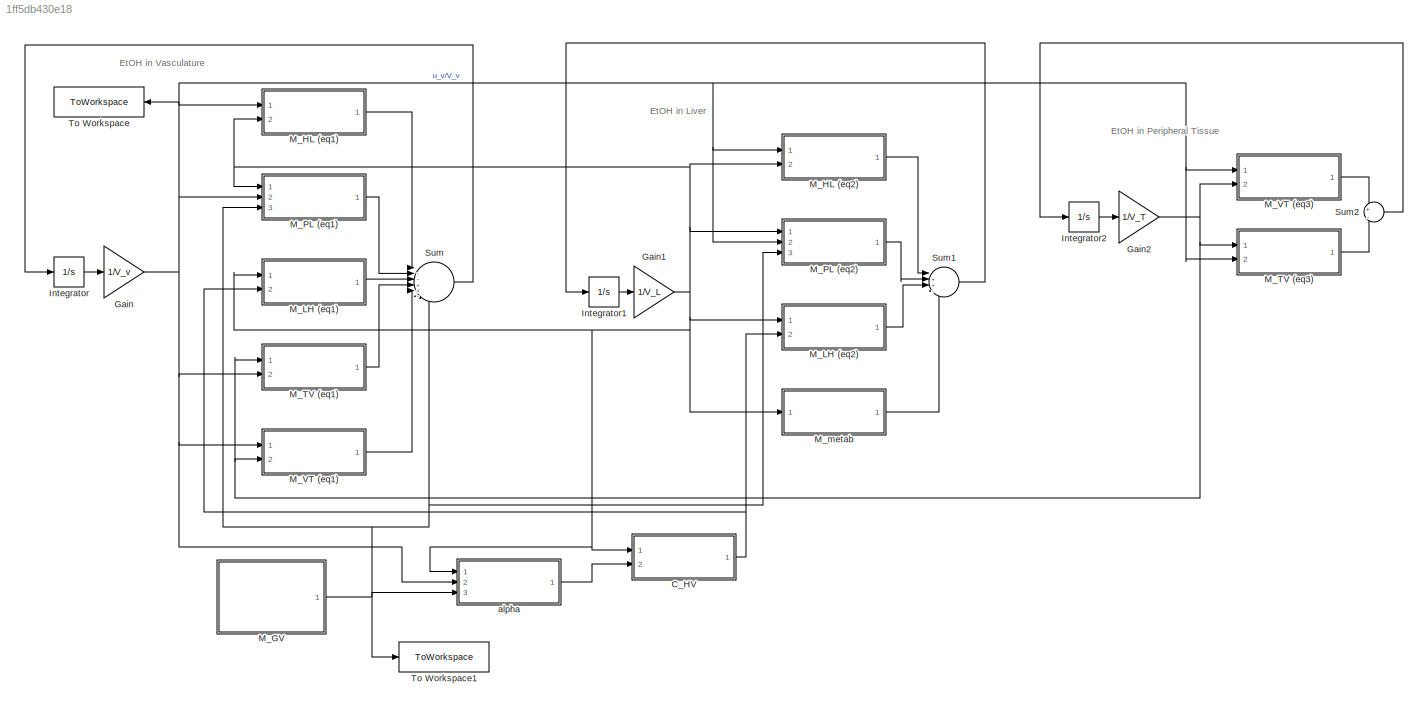
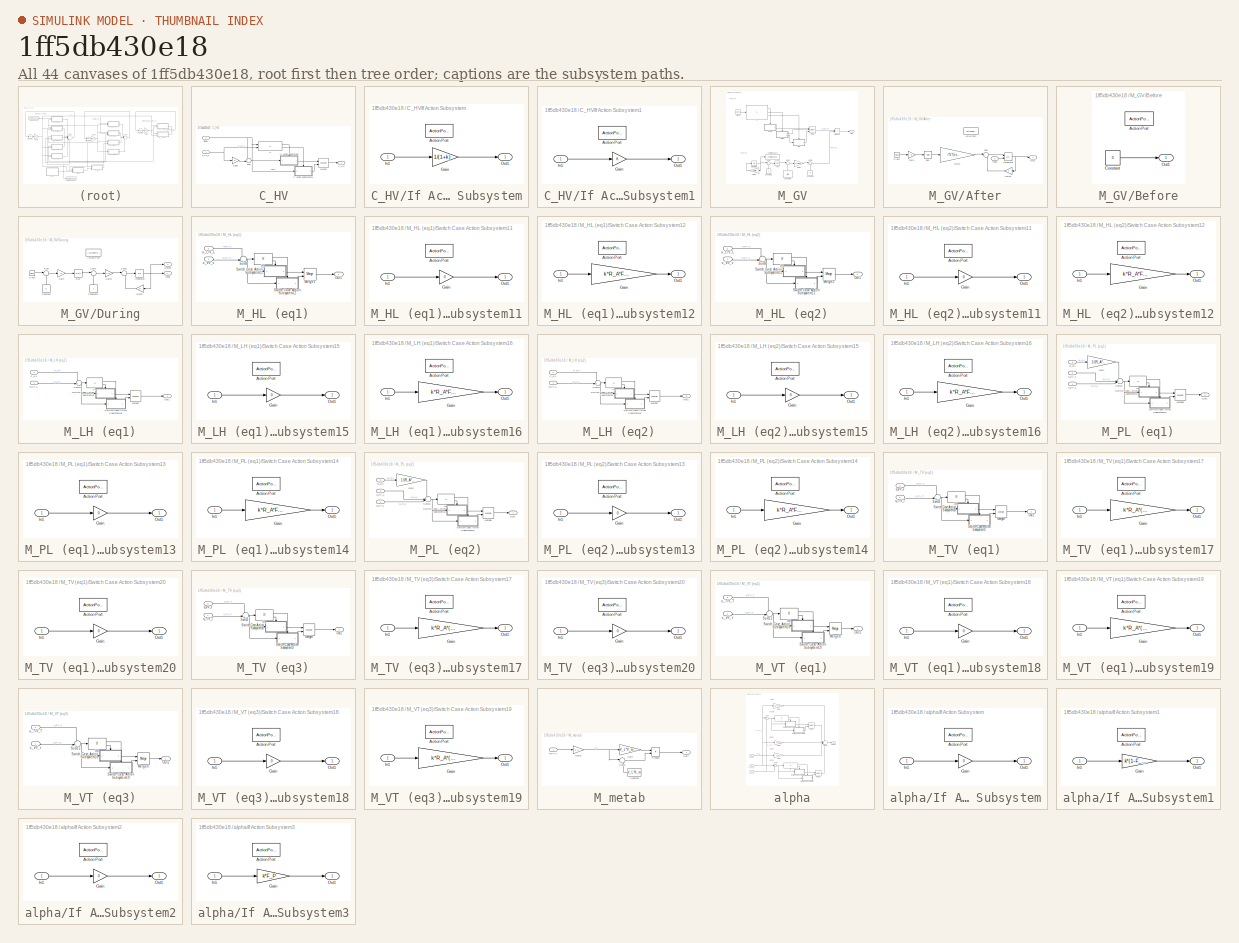
[diagram: thumbnail index - all 44 canvases of the model, root first then tree order]
MODEL slx_1ff5db430e18
KIND model
CONFIG AbsTol = auto
CONFIG EnableMultiTasking = off
CONFIG FixedStep = 10
CONFIG MaxStep = auto
CONFIG MinStep = auto
CONFIG RelTol = 1e-3
CONFIG SampleTimeConstraint = Unconstrained
CONFIG SolverName = FixedStepAuto
CONFIG StartTime = 0.0
CONFIG StopTime = 10000
BLOCK [SubSystem] C_HV
  Ports = [2, 1]
  RequestExecContextInheritance = off
BLOCK [Outport] C_HV/C_HV
BLOCK [Gain] C_HV/Gain1
  Gain = k
BLOCK [If] C_HV/If
  ElseIfExpressions = u1 >= u2
  IfExpression = u1 < u2
  NumInputs = 2
  Ports = [2, 2]
  ShowElse = off
BLOCK [SubSystem] C_HV/If Action Subsystem
  Ports = [1, 1, 0, 0, 0, 0, 0, 1]
  RequestExecContextInheritance = off
  TreatAsAtomicUnit = on
BLOCK [ActionPort] C_HV/If Action Subsystem/Action Port
  ActionPortLabel = if(u1 < u2)
BLOCK [Gain] C_HV/If Action Subsystem/Gain
  Gain = 1/(1+k)
BLOCK [Inport] C_HV/If Action Subsystem/In1
BLOCK [Outport] C_HV/If Action Subsystem/Out1
BLOCK [SubSystem] C_HV/If Action Subsystem1
  Ports = [1, 1, 0, 0, 0, 0, 0, 1]
  RequestExecContextInheritance = off
  TreatAsAtomicUnit = on
BLOCK [ActionPort] C_HV/If Action Subsystem1/Action Port
  ActionPortLabel = elseif(u1 >= u2)
BLOCK [Gain] C_HV/If Action Subsystem1/Gain
BLOCK [Inport] C_HV/If Action Subsystem1/In1
BLOCK [Outport] C_HV/If Action Subsystem1/Out1
BLOCK [Merge] C_HV/Merge
  Ports = [2, 1]
BLOCK [Sum] C_HV/Sum
  Inputs = ++|
  Ports = [2, 1]
BLOCK [Inport] C_HV/alpha
  Port = 2
BLOCK [Inport] C_HV/u_L//V_L
BLOCK [Gain] Gain
  Gain = 1/V_v
BLOCK [Gain] Gain1
  Gain = 1/V_L
BLOCK [Gain] Gain2
  Gain = 1/V_T
BLOCK [Integrator] Integrator
  Ports = [1, 1]
BLOCK [Integrator] Integrator1
  Ports = [1, 1]
BLOCK [Integrator] Integrator2
  Ports = [1, 1]
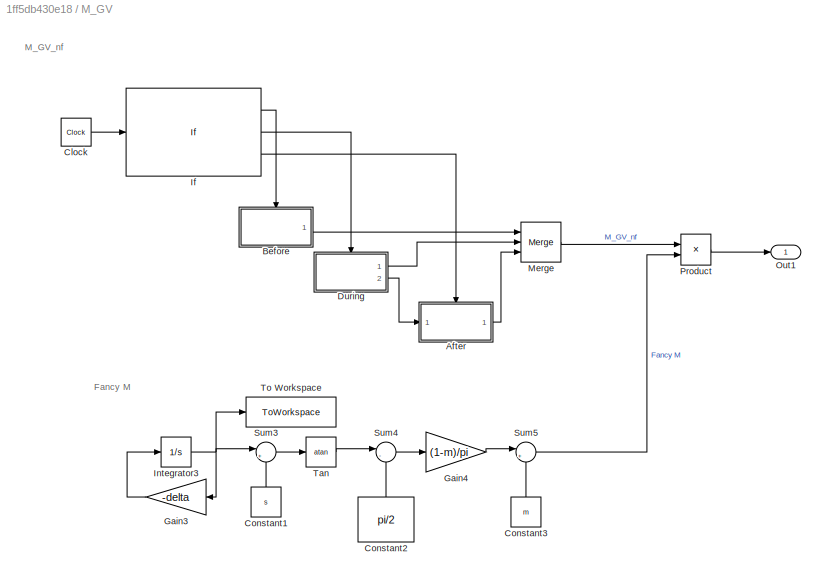
BLOCK [SubSystem] M_GV
  Ports = [0, 1]
  RequestExecContextInheritance = off
BLOCK [SubSystem] M_GV/After
  Ports = [1, 1, 0, 0, 0, 0, 0, 1]
  RequestExecContextInheritance = off
  TreatAsAtomicUnit = on
BLOCK [ActionPort] M_GV/After/Action Port
  ActionPortLabel = else
BLOCK [Clock] M_GV/After/Clock
BLOCK [Math] M_GV/After/Exp
  Ports = [1, 1]
BLOCK [Gain] M_GV/After/Gain
  Gain = -b
BLOCK [Gain] M_GV/After/Gain1
  Gain = r*b*(exp(b*E)-exp(b*S))
BLOCK [Gain] M_GV/After/Gain2
  Gain = b
  NameLocation = top
BLOCK [Inport] M_GV/After/Input
BLOCK [Integrator] M_GV/After/Integrator
  InitialConditionSource = external
  Ports = [2, 1]
BLOCK [Outport] M_GV/After/Out1
BLOCK [Sum] M_GV/After/Sum
  Inputs = |+-
  Ports = [2, 1]
BLOCK [SubSystem] M_GV/Before
  Ports = [0, 1, 0, 0, 0, 0, 0, 1]
  RequestExecContextInheritance = off
  TreatAsAtomicUnit = on
BLOCK [ActionPort] M_GV/Before/Action Port
  ActionPortLabel = if(u1 < 0)
BLOCK [Constant] M_GV/Before/Constant
  Value = 0
BLOCK [Outport] M_GV/Before/Out1
BLOCK [Clock] M_GV/Clock
BLOCK [Constant] M_GV/Constant1
  NameLocation = right
  Value = s
BLOCK [Constant] M_GV/Constant2
  NameLocation = right
  Value = pi/2
BLOCK [Constant] M_GV/Constant3
  NameLocation = right
  Value = m
BLOCK [SubSystem] M_GV/During
  Ports = [0, 2, 0, 0, 0, 0, 0, 1]
  RequestExecContextInheritance = off
  TreatAsAtomicUnit = on
BLOCK [ActionPort] M_GV/During/Action Port
  ActionPortLabel = elseif(S <= u1 & u1 <= E)
BLOCK [Clock] M_GV/During/Clock
BLOCK [Constant] M_GV/During/Constant
  NameLocation = right
  Value = S
BLOCK [Constant] M_GV/During/Constant1
  NameLocation = right
BLOCK [Math] M_GV/During/Exp
  Ports = [1, 1]
BLOCK [Gain] M_GV/During/Gain
  Gain = -b
BLOCK [Gain] M_GV/During/Gain1
  Gain = r*b
BLOCK [Gain] M_GV/During/Gain2
  Gain = b
  NameLocation = top
BLOCK [Outport] M_GV/During/Input
BLOCK [Integrator] M_GV/During/Integrator
  Ports = [1, 1]
BLOCK [Outport] M_GV/During/Output
  Port = 2
BLOCK [Sum] M_GV/During/Sum
  Inputs = |+-
  Ports = [2, 1]
BLOCK [Sum] M_GV/During/Sum1
  Inputs = |-+
  Ports = [2, 1]
BLOCK [Sum] M_GV/During/Sum2
  Inputs = |+-
  Ports = [2, 1]
BLOCK [Gain] M_GV/Gain3
  Gain = -delta
  NameLocation = top
BLOCK [Gain] M_GV/Gain4
  Gain = (1-m)/pi
BLOCK [If] M_GV/If
  ElseIfExpressions = S <= u1 & u1 <= E
  IfExpression = u1 < 0
  Ports = [1, 3]
BLOCK [Integrator] M_GV/Integrator3
  Ports = [1, 1]
BLOCK [Merge] M_GV/Merge
  Inputs = 3
  Ports = [3, 1]
BLOCK [Outport] M_GV/Out1
BLOCK [Product] M_GV/Product
  Ports = [2, 1]
BLOCK [Sum] M_GV/Sum3
  Inputs = |+-
  Ports = [2, 1]
BLOCK [Sum] M_GV/Sum4
  Inputs = |-+
  Ports = [2, 1]
BLOCK [Sum] M_GV/Sum5
  Inputs = |++
  Ports = [2, 1]
BLOCK [Trigonometry] M_GV/Tan
  Operator = atan
  Ports = [1, 1]
BLOCK [ToWorkspace] M_GV/To Workspace
  FixptAsFi = on
  MaxDataPoints = inf
  Ports = [1]
  SampleTime = -1
  SaveFormat = Timeseries
  VariableName = food
BLOCK [SubSystem] M_HL (eq1)
  Ports = [2, 1]
  RequestExecContextInheritance = off
BLOCK [If] M_HL (eq1)/If5
  Ports = [1, 2]
BLOCK [Merge] M_HL (eq1)/Merge5
  Ports = [2, 1]
BLOCK [Outport] M_HL (eq1)/Out1
BLOCK [Sum] M_HL (eq1)/Sum9
  Inputs = -+|
  Ports = [2, 1]
BLOCK [SubSystem] M_HL (eq1)/Switch Case Action Subsystem11
  Ports = [1, 1, 0, 0, 0, 0, 0, 1]
  RequestExecContextInheritance = off
  TreatAsAtomicUnit = on
BLOCK [ActionPort] M_HL (eq1)/Switch Case Action Subsystem11/Action Port
  ActionPortLabel = else
BLOCK [Gain] M_HL (eq1)/Switch Case Action Subsystem11/Gain
  Gain = 0
BLOCK [Inport] M_HL (eq1)/Switch Case Action Subsystem11/In1
BLOCK [Outport] M_HL (eq1)/Switch Case Action Subsystem11/Out1
BLOCK [SubSystem] M_HL (eq1)/Switch Case Action Subsystem12
  Ports = [1, 1, 0, 0, 0, 0, 0, 1]
  RequestExecContextInheritance = off
  TreatAsAtomicUnit = on
BLOCK [ActionPort] M_HL (eq1)/Switch Case Action Subsystem12/Action Port
  ActionPortLabel = if(u1 > 0)
BLOCK [Gain] M_HL (eq1)/Switch Case Action Subsystem12/Gain
  Gain = k*R_A*F_L*(1-F_P)
BLOCK [Inport] M_HL (eq1)/Switch Case Action Subsystem12/In1
BLOCK [Outport] M_HL (eq1)/Switch Case Action Subsystem12/Out1
BLOCK [Inport] M_HL (eq1)/u_L//V_L
  Port = 2
BLOCK [Inport] M_HL (eq1)/u_v//V_v
BLOCK [SubSystem] M_HL (eq2)
  Ports = [2, 1]
  RequestExecContextInheritance = off
BLOCK [If] M_HL (eq2)/If5
  Ports = [1, 2]
BLOCK [Merge] M_HL (eq2)/Merge5
  Ports = [2, 1]
BLOCK [Outport] M_HL (eq2)/Out1
BLOCK [Sum] M_HL (eq2)/Sum9
  Inputs = -+|
  Ports = [2, 1]
BLOCK [SubSystem] M_HL (eq2)/Switch Case Action Subsystem11
  Ports = [1, 1, 0, 0, 0, 0, 0, 1]
  RequestExecContextInheritance = off
  TreatAsAtomicUnit = on
BLOCK [ActionPort] M_HL (eq2)/Switch Case Action Subsystem11/Action Port
  ActionPortLabel = else
BLOCK [Gain] M_HL (eq2)/Switch Case Action Subsystem11/Gain
  Gain = 0
BLOCK [Inport] M_HL (eq2)/Switch Case Action Subsystem11/In1
BLOCK [Outport] M_HL (eq2)/Switch Case Action Subsystem11/Out1
BLOCK [SubSystem] M_HL (eq2)/Switch Case Action Subsystem12
  Ports = [1, 1, 0, 0, 0, 0, 0, 1]
  RequestExecContextInheritance = off
  TreatAsAtomicUnit = on
BLOCK [ActionPort] M_HL (eq2)/Switch Case Action Subsystem12/Action Port
  ActionPortLabel = if(u1 > 0)
BLOCK [Gain] M_HL (eq2)/Switch Case Action Subsystem12/Gain
  Gain = k*R_A*F_L*(1-F_P)
BLOCK [Inport] M_HL (eq2)/Switch Case Action Subsystem12/In1
BLOCK [Outport] M_HL (eq2)/Switch Case Action Subsystem12/Out1
BLOCK [Inport] M_HL (eq2)/u_L//V_L
  Port = 2
BLOCK [Inport] M_HL (eq2)/u_v//V_v
BLOCK [SubSystem] M_LH (eq1)
  Ports = [2, 1]
  RequestExecContextInheritance = off
BLOCK [Inport] M_LH (eq1)/C_HV
  Port = 2
BLOCK [If] M_LH (eq1)/If7
  Ports = [1, 2]
BLOCK [Merge] M_LH (eq1)/Merge7
  Ports = [2, 1]
BLOCK [Outport] M_LH (eq1)/Out1
BLOCK [Sum] M_LH (eq1)/Sum11
  Inputs = -+|
  Ports = [2, 1]
BLOCK [SubSystem] M_LH (eq1)/Switch Case Action Subsystem15
  Ports = [1, 1, 0, 0, 0, 0, 0, 1]
  RequestExecContextInheritance = off
  TreatAsAtomicUnit = on
BLOCK [ActionPort] M_LH (eq1)/Switch Case Action Subsystem15/Action Port
  ActionPortLabel = else
BLOCK [Gain] M_LH (eq1)/Switch Case Action Subsystem15/Gain
  Gain = 0
BLOCK [Inport] M_LH (eq1)/Switch Case Action Subsystem15/In1
BLOCK [Outport] M_LH (eq1)/Switch Case Action Subsystem15/Out1
BLOCK [SubSystem] M_LH (eq1)/Switch Case Action Subsystem16
  Ports = [1, 1, 0, 0, 0, 0, 0, 1]
  RequestExecContextInheritance = off
  TreatAsAtomicUnit = on
BLOCK [ActionPort] M_LH (eq1)/Switch Case Action Subsystem16/Action Port
  ActionPortLabel = if(u1 > 0)
BLOCK [Gain] M_LH (eq1)/Switch Case Action Subsystem16/Gain
  Gain = k*R_A*F_L
BLOCK [Inport] M_LH (eq1)/Switch Case Action Subsystem16/In1
BLOCK [Outport] M_LH (eq1)/Switch Case Action Subsystem16/Out1
BLOCK [Inport] M_LH (eq1)/u_L//V_L
BLOCK [SubSystem] M_LH (eq2)
  Ports = [2, 1]
  RequestExecContextInheritance = off
BLOCK [Inport] M_LH (eq2)/C_HV
  Port = 2
BLOCK [If] M_LH (eq2)/If7
  Ports = [1, 2]
BLOCK [Merge] M_LH (eq2)/Merge7
  Ports = [2, 1]
BLOCK [Outport] M_LH (eq2)/Out1
BLOCK [Sum] M_LH (eq2)/Sum11
  Inputs = -+|
  Ports = [2, 1]
BLOCK [SubSystem] M_LH (eq2)/Switch Case Action Subsystem15
  Ports = [1, 1, 0, 0, 0, 0, 0, 1]
  RequestExecContextInheritance = off
  TreatAsAtomicUnit = on
BLOCK [ActionPort] M_LH (eq2)/Switch Case Action Subsystem15/Action Port
  ActionPortLabel = else
BLOCK [Gain] M_LH (eq2)/Switch Case Action Subsystem15/Gain
  Gain = 0
BLOCK [Inport] M_LH (eq2)/Switch Case Action Subsystem15/In1
BLOCK [Outport] M_LH (eq2)/Switch Case Action Subsystem15/Out1
BLOCK [SubSystem] M_LH (eq2)/Switch Case Action Subsystem16
  Ports = [1, 1, 0, 0, 0, 0, 0, 1]
  RequestExecContextInheritance = off
  TreatAsAtomicUnit = on
BLOCK [ActionPort] M_LH (eq2)/Switch Case Action Subsystem16/Action Port
  ActionPortLabel = if(u1 > 0)
BLOCK [Gain] M_LH (eq2)/Switch Case Action Subsystem16/Gain
  Gain = k*R_A*F_L
BLOCK [Inport] M_LH (eq2)/Switch Case Action Subsystem16/In1
BLOCK [Outport] M_LH (eq2)/Switch Case Action Subsystem16/Out1
BLOCK [Inport] M_LH (eq2)/u_L//V_L
BLOCK [SubSystem] M_PL (eq1)
  Ports = [3, 1]
  RequestExecContextInheritance = off
BLOCK [Gain] M_PL (eq1)/Gain
  Gain = 1/(R_A*F_L*F_P)
BLOCK [If] M_PL (eq1)/If6
  Ports = [1, 2]
BLOCK [Inport] M_PL (eq1)/M_GV
  Port = 3
BLOCK [Merge] M_PL (eq1)/Merge6
  Ports = [2, 1]
BLOCK [Outport] M_PL (eq1)/Out1
BLOCK [Sum] M_PL (eq1)/Sum10
  Inputs = ++-|
  Ports = [3, 1]
BLOCK [SubSystem] M_PL (eq1)/Switch Case Action Subsystem13
  Ports = [1, 1, 0, 0, 0, 0, 0, 1]
  RequestExecContextInheritance = off
  TreatAsAtomicUnit = on
BLOCK [ActionPort] M_PL (eq1)/Switch Case Action Subsystem13/Action Port
  ActionPortLabel = else
BLOCK [Gain] M_PL (eq1)/Switch Case Action Subsystem13/Gain
  Gain = 0
BLOCK [Inport] M_PL (eq1)/Switch Case Action Subsystem13/In1
BLOCK [Outport] M_PL (eq1)/Switch Case Action Subsystem13/Out1
BLOCK [SubSystem] M_PL (eq1)/Switch Case Action Subsystem14
  Ports = [1, 1, 0, 0, 0, 0, 0, 1]
  RequestExecContextInheritance = off
  TreatAsAtomicUnit = on
BLOCK [ActionPort] M_PL (eq1)/Switch Case Action Subsystem14/Action Port
  ActionPortLabel = if(u1 > 0)
BLOCK [Gain] M_PL (eq1)/Switch Case Action Subsystem14/Gain
  Gain = k*R_A*F_L*F_P
BLOCK [Inport] M_PL (eq1)/Switch Case Action Subsystem14/In1
BLOCK [Outport] M_PL (eq1)/Switch Case Action Subsystem14/Out1
BLOCK [Inport] M_PL (eq1)/u_L//V_L
BLOCK [Inport] M_PL (eq1)/u_v//V_v
  Port = 2
BLOCK [SubSystem] M_PL (eq2)
  Ports = [3, 1]
  RequestExecContextInheritance = off
BLOCK [Gain] M_PL (eq2)/Gain
  Gain = 1/(R_A*F_L*F_P)
BLOCK [If] M_PL (eq2)/If6
  Ports = [1, 2]
BLOCK [Inport] M_PL (eq2)/M_GV
  Port = 3
BLOCK [Merge] M_PL (eq2)/Merge6
  Ports = [2, 1]
BLOCK [Outport] M_PL (eq2)/Out1
BLOCK [Sum] M_PL (eq2)/Sum10
  Inputs = ++-|
  Ports = [3, 1]
BLOCK [SubSystem] M_PL (eq2)/Switch Case Action Subsystem13
  Ports = [1, 1, 0, 0, 0, 0, 0, 1]
  RequestExecContextInheritance = off
  TreatAsAtomicUnit = on
BLOCK [ActionPort] M_PL (eq2)/Switch Case Action Subsystem13/Action Port
  ActionPortLabel = else
BLOCK [Gain] M_PL (eq2)/Switch Case Action Subsystem13/Gain
  Gain = 0
BLOCK [Inport] M_PL (eq2)/Switch Case Action Subsystem13/In1
BLOCK [Outport] M_PL (eq2)/Switch Case Action Subsystem13/Out1
BLOCK [SubSystem] M_PL (eq2)/Switch Case Action Subsystem14
  Ports = [1, 1, 0, 0, 0, 0, 0, 1]
  RequestExecContextInheritance = off
  TreatAsAtomicUnit = on
BLOCK [ActionPort] M_PL (eq2)/Switch Case Action Subsystem14/Action Port
  ActionPortLabel = if(u1 > 0)
BLOCK [Gain] M_PL (eq2)/Switch Case Action Subsystem14/Gain
  Gain = k*R_A*F_L*F_P
BLOCK [Inport] M_PL (eq2)/Switch Case Action Subsystem14/In1
BLOCK [Outport] M_PL (eq2)/Switch Case Action Subsystem14/Out1
BLOCK [Inport] M_PL (eq2)/u_L//V_L
BLOCK [Inport] M_PL (eq2)/u_v//V_v
  Port = 2
BLOCK [SubSystem] M_TV (eq1)
  Ports = [2, 1]
  RequestExecContextInheritance = off
BLOCK [If] M_TV (eq1)/If9
  Ports = [1, 2]
BLOCK [Merge] M_TV (eq1)/Merge9
  Ports = [2, 1]
BLOCK [Outport] M_TV (eq1)/Out1
BLOCK [Sum] M_TV (eq1)/Sum13
  Inputs = -+|
  Ports = [2, 1]
BLOCK [SubSystem] M_TV (eq1)/Switch Case Action Subsystem17
  Ports = [1, 1, 0, 0, 0, 0, 0, 1]
  RequestExecContextInheritance = off
  TreatAsAtomicUnit = on
BLOCK [ActionPort] M_TV (eq1)/Switch Case Action Subsystem17/Action Port
  ActionPortLabel = if(u1 > 0)
BLOCK [Gain] M_TV (eq1)/Switch Case Action Subsystem17/Gain
  Gain = k*R_A*(1-F_L)
BLOCK [Inport] M_TV (eq1)/Switch Case Action Subsystem17/In1
BLOCK [Outport] M_TV (eq1)/Switch Case Action Subsystem17/Out1
BLOCK [SubSystem] M_TV (eq1)/Switch Case Action Subsystem20
  Ports = [1, 1, 0, 0, 0, 0, 0, 1]
  RequestExecContextInheritance = off
  TreatAsAtomicUnit = on
BLOCK [ActionPort] M_TV (eq1)/Switch Case Action Subsystem20/Action Port
  ActionPortLabel = else
BLOCK [Gain] M_TV (eq1)/Switch Case Action Subsystem20/Gain
  Gain = 0
BLOCK [Inport] M_TV (eq1)/Switch Case Action Subsystem20/In1
BLOCK [Outport] M_TV (eq1)/Switch Case Action Subsystem20/Out1
BLOCK [Inport] M_TV (eq1)/u_T//V_T
BLOCK [Inport] M_TV (eq1)/u_v//V_v
  Port = 2
BLOCK [SubSystem] M_TV (eq3)
  Ports = [2, 1]
  RequestExecContextInheritance = off
BLOCK [If] M_TV (eq3)/If9
  Ports = [1, 2]
BLOCK [Merge] M_TV (eq3)/Merge9
  Ports = [2, 1]
BLOCK [Outport] M_TV (eq3)/Out1
BLOCK [Sum] M_TV (eq3)/Sum13
  Inputs = -+|
  Ports = [2, 1]
BLOCK [SubSystem] M_TV (eq3)/Switch Case Action Subsystem17
  Ports = [1, 1, 0, 0, 0, 0, 0, 1]
  RequestExecContextInheritance = off
  TreatAsAtomicUnit = on
BLOCK [ActionPort] M_TV (eq3)/Switch Case Action Subsystem17/Action Port
  ActionPortLabel = if(u1 > 0)
BLOCK [Gain] M_TV (eq3)/Switch Case Action Subsystem17/Gain
  Gain = k*R_A*(1-F_L)
BLOCK [Inport] M_TV (eq3)/Switch Case Action Subsystem17/In1
BLOCK [Outport] M_TV (eq3)/Switch Case Action Subsystem17/Out1
BLOCK [SubSystem] M_TV (eq3)/Switch Case Action Subsystem20
  Ports = [1, 1, 0, 0, 0, 0, 0, 1]
  RequestExecContextInheritance = off
  TreatAsAtomicUnit = on
BLOCK [ActionPort] M_TV (eq3)/Switch Case Action Subsystem20/Action Port
  ActionPortLabel = else
BLOCK [Gain] M_TV (eq3)/Switch Case Action Subsystem20/Gain
  Gain = 0
BLOCK [Inport] M_TV (eq3)/Switch Case Action Subsystem20/In1
BLOCK [Outport] M_TV (eq3)/Switch Case Action Subsystem20/Out1
BLOCK [Inport] M_TV (eq3)/u_T//V_T
BLOCK [Inport] M_TV (eq3)/u_v//V_v
  Port = 2
BLOCK [SubSystem] M_VT (eq1)
  Ports = [2, 1]
  RequestExecContextInheritance = off
BLOCK [If] M_VT (eq1)/If8
  Ports = [1, 2]
BLOCK [Merge] M_VT (eq1)/Merge8
  Ports = [2, 1]
BLOCK [Outport] M_VT (eq1)/Out1
BLOCK [Sum] M_VT (eq1)/Sum12
  Inputs = -+|
  Ports = [2, 1]
BLOCK [SubSystem] M_VT (eq1)/Switch Case Action Subsystem18
  Ports = [1, 1, 0, 0, 0, 0, 0, 1]
  RequestExecContextInheritance = off
  TreatAsAtomicUnit = on
BLOCK [ActionPort] M_VT (eq1)/Switch Case Action Subsystem18/Action Port
  ActionPortLabel = else
BLOCK [Gain] M_VT (eq1)/Switch Case Action Subsystem18/Gain
  Gain = 0
BLOCK [Inport] M_VT (eq1)/Switch Case Action Subsystem18/In1
BLOCK [Outport] M_VT (eq1)/Switch Case Action Subsystem18/Out1
BLOCK [SubSystem] M_VT (eq1)/Switch Case Action Subsystem19
  Ports = [1, 1, 0, 0, 0, 0, 0, 1]
  RequestExecContextInheritance = off
  TreatAsAtomicUnit = on
BLOCK [ActionPort] M_VT (eq1)/Switch Case Action Subsystem19/Action Port
  ActionPortLabel = if(u1 > 0)
BLOCK [Gain] M_VT (eq1)/Switch Case Action Subsystem19/Gain
  Gain = k*R_A*(1-F_L)
BLOCK [Inport] M_VT (eq1)/Switch Case Action Subsystem19/In1
BLOCK [Outport] M_VT (eq1)/Switch Case Action Subsystem19/Out1
BLOCK [Inport] M_VT (eq1)/u_T//V_T
  Port = 2
BLOCK [Inport] M_VT (eq1)/u_v//V_v
BLOCK [SubSystem] M_VT (eq3)
  Ports = [2, 1]
  RequestExecContextInheritance = off
BLOCK [If] M_VT (eq3)/If8
  Ports = [1, 2]
BLOCK [Merge] M_VT (eq3)/Merge8
  Ports = [2, 1]
BLOCK [Outport] M_VT (eq3)/Out1
BLOCK [Sum] M_VT (eq3)/Sum12
  Inputs = -+|
  Ports = [2, 1]
BLOCK [SubSystem] M_VT (eq3)/Switch Case Action Subsystem18
  Ports = [1, 1, 0, 0, 0, 0, 0, 1]
  RequestExecContextInheritance = off
  TreatAsAtomicUnit = on
BLOCK [ActionPort] M_VT (eq3)/Switch Case Action Subsystem18/Action Port
  ActionPortLabel = else
BLOCK [Gain] M_VT (eq3)/Switch Case Action Subsystem18/Gain
  Gain = 0
BLOCK [Inport] M_VT (eq3)/Switch Case Action Subsystem18/In1
BLOCK [Outport] M_VT (eq3)/Switch Case Action Subsystem18/Out1
BLOCK [SubSystem] M_VT (eq3)/Switch Case Action Subsystem19
  Ports = [1, 1, 0, 0, 0, 0, 0, 1]
  RequestExecContextInheritance = off
  TreatAsAtomicUnit = on
BLOCK [ActionPort] M_VT (eq3)/Switch Case Action Subsystem19/Action Port
  ActionPortLabel = if(u1 > 0)
BLOCK [Gain] M_VT (eq3)/Switch Case Action Subsystem19/Gain
  Gain = k*R_A*(1-F_L)
BLOCK [Inport] M_VT (eq3)/Switch Case Action Subsystem19/In1
BLOCK [Outport] M_VT (eq3)/Switch Case Action Subsystem19/Out1
BLOCK [Inport] M_VT (eq3)/u_T//V_T
  Port = 2
BLOCK [Inport] M_VT (eq3)/u_v//V_v
BLOCK [SubSystem] M_metab
  Ports = [1, 1]
  RequestExecContextInheritance = off
BLOCK [Constant] M_metab/Constant
  Value = V_L*K_m
BLOCK [Gain] M_metab/Gain
  Gain = V_L*V_max
BLOCK [Gain] M_metab/Gain1
  Gain = V_L
BLOCK [Outport] M_metab/Out1
BLOCK [Product] M_metab/Product
  Inputs = */
  Ports = [2, 1]
BLOCK [Sum] M_metab/Sum3
  Inputs = |++
  Ports = [2, 1]
BLOCK [Inport] M_metab/u_L//V_L
BLOCK [Sum] Sum
  Inputs = |--++-+
  Ports = [6, 1]
BLOCK [Sum] Sum1
  Inputs = |++--
  Ports = [4, 1]
BLOCK [Sum] Sum2
  Inputs = +|-
  Ports = [2, 1]
BLOCK [ToWorkspace] To Workspace
  FixptAsFi = on
  MaxDataPoints = inf
  NameLocation = top
  Ports = [1]
  SampleTime = -1
  SaveFormat = Timeseries
  VariableName = simout
BLOCK [ToWorkspace] To Workspace1
  FixptAsFi = on
  MaxDataPoints = inf
  Ports = [1]
  SampleTime = -1
  SaveFormat = Timeseries
  VariableName = M_GV
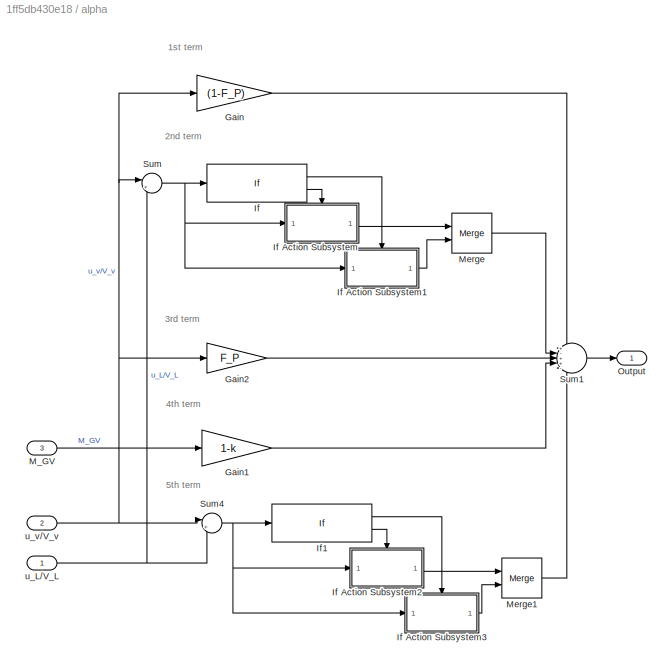
BLOCK [SubSystem] alpha
  Ports = [3, 1]
  RequestExecContextInheritance = off
BLOCK [Gain] alpha/Gain
  Gain = (1-F_P)
BLOCK [Gain] alpha/Gain1
  Gain = 1-k
BLOCK [Gain] alpha/Gain2
  Gain = F_P
BLOCK [If] alpha/If
  Ports = [1, 2]
BLOCK [SubSystem] alpha/If Action Subsystem
  Ports = [1, 1, 0, 0, 0, 0, 0, 1]
  RequestExecContextInheritance = off
  TreatAsAtomicUnit = on
BLOCK [ActionPort] alpha/If Action Subsystem/Action Port
  ActionPortLabel = else
BLOCK [Gain] alpha/If Action Subsystem/Gain
  Gain = 0
BLOCK [Inport] alpha/If Action Subsystem/In1
BLOCK [Outport] alpha/If Action Subsystem/Out1
BLOCK [SubSystem] alpha/If Action Subsystem1
  Ports = [1, 1, 0, 0, 0, 0, 0, 1]
  RequestExecContextInheritance = off
  TreatAsAtomicUnit = on
BLOCK [ActionPort] alpha/If Action Subsystem1/Action Port
  ActionPortLabel = if(u1 > 0)
BLOCK [Gain] alpha/If Action Subsystem1/Gain
  Gain = k*(1-F_P)
BLOCK [Inport] alpha/If Action Subsystem1/In1
BLOCK [Outport] alpha/If Action Subsystem1/Out1
BLOCK [SubSystem] alpha/If Action Subsystem2
  Ports = [1, 1, 0, 0, 0, 0, 0, 1]
  RequestExecContextInheritance = off
  TreatAsAtomicUnit = on
BLOCK [ActionPort] alpha/If Action Subsystem2/Action Port
  ActionPortLabel = else
BLOCK [Gain] alpha/If Action Subsystem2/Gain
  Gain = 0
BLOCK [Inport] alpha/If Action Subsystem2/In1
BLOCK [Outport] alpha/If Action Subsystem2/Out1
BLOCK [SubSystem] alpha/If Action Subsystem3
  Ports = [1, 1, 0, 0, 0, 0, 0, 1]
  RequestExecContextInheritance = off
  TreatAsAtomicUnit = on
BLOCK [ActionPort] alpha/If Action Subsystem3/Action Port
  ActionPortLabel = if(u1 > 0)
BLOCK [Gain] alpha/If Action Subsystem3/Gain
  Gain = k*F_P
BLOCK [Inport] alpha/If Action Subsystem3/In1
BLOCK [Outport] alpha/If Action Subsystem3/Out1
BLOCK [If] alpha/If1
  Ports = [1, 2]
BLOCK [Inport] alpha/M_GV
  Port = 3
BLOCK [Merge] alpha/Merge
  Ports = [2, 1]
BLOCK [Merge] alpha/Merge1
  Ports = [2, 1]
BLOCK [Outport] alpha/Output
BLOCK [Sum] alpha/Sum
  Inputs = |+-
  Ports = [2, 1]
BLOCK [Sum] alpha/Sum1
  Inputs = +-++-
  Ports = [5, 1]
BLOCK [Sum] alpha/Sum4
  Inputs = |+-
  Ports = [2, 1]
BLOCK [Inport] alpha/u_L//V_L
BLOCK [Inport] alpha/u_v//V_v
  Port = 2
ANNOTATION (root): EtOH in Liver
ANNOTATION (root): EtOH in Peripheral Tissue
ANNOTATION (root): EtOH in Vasculature
ANNOTATION M_GV: Fancy M
ANNOTATION M_GV: M_GV_nf
ANNOTATION alpha: 1st term
ANNOTATION alpha: 2nd term
ANNOTATION alpha: 3rd term
ANNOTATION alpha: 4th term
ANNOTATION alpha: 5th term
LINE C_HV/Gain1:1 -> C_HV/Sum:2
LINE C_HV/If Action Subsystem/Gain:1 -> C_HV/If Action Subsystem/Out1:1
LINE C_HV/If Action Subsystem/In1:1 -> C_HV/If Action Subsystem/Gain:1
LINE C_HV/If Action Subsystem1/Gain:1 -> C_HV/If Action Subsystem1/Out1:1
LINE C_HV/If Action Subsystem1/In1:1 -> C_HV/If Action Subsystem1/Gain:1
LINE C_HV/If Action Subsystem1:1 -> C_HV/Merge:2
LINE C_HV/If Action Subsystem:1 -> C_HV/Merge:1
LINE C_HV/If:1 -> C_HV/If Action Subsystem:ifaction
LINE C_HV/If:2 -> C_HV/If Action Subsystem1:ifaction
LINE C_HV/Merge:1 -> C_HV/C_HV:1
LINE C_HV/Sum:1 -> C_HV/If Action Subsystem:1
NET C_HV/alpha:1 -> C_HV/If Action Subsystem1:1, C_HV/If:1, C_HV/Sum:1
NET C_HV/u_L//V_L:1 -> C_HV/Gain1:1, C_HV/If:2
NET C_HV:1 -> M_LH (eq1):2, M_LH (eq2):2
NET Gain1:1 -> C_HV:1, M_HL (eq1):2, M_HL (eq2):2, M_LH (eq1):1, M_LH (eq2):1, M_PL (eq1):1, M_PL (eq2):1, M_metab:1, alpha:1
NET Gain2:1 -> M_TV (eq1):1, M_TV (eq3):1, M_VT (eq1):2, M_VT (eq3):2
NET Gain:1 -> M_HL (eq1):1, M_HL (eq2):1, M_PL (eq1):2, M_PL (eq2):2, M_TV (eq1):2, M_TV (eq3):2, M_VT (eq1):1, M_VT (eq3):1, To Workspace:1, alpha:2
LINE Integrator1:1 -> Gain1:1
LINE Integrator2:1 -> Gain2:1
LINE Integrator:1 -> Gain:1
LINE M_GV/After/Clock:1 -> M_GV/After/Gain:1
LINE M_GV/After/Exp:1 -> M_GV/After/Gain1:1
LINE M_GV/After/Gain1:1 -> M_GV/After/Sum:1
LINE M_GV/After/Gain2:1 -> M_GV/After/Sum:2
LINE M_GV/After/Gain:1 -> M_GV/After/Exp:1
LINE M_GV/After/Input:1 -> M_GV/After/Integrator:2
NET M_GV/After/Integrator:1 -> M_GV/After/Gain2:1, M_GV/After/Out1:1
LINE M_GV/After/Sum:1 -> M_GV/After/Integrator:1
LINE M_GV/After:1 -> M_GV/Merge:3
LINE M_GV/Before/Constant:1 -> M_GV/Before/Out1:1
LINE M_GV/Before:1 -> M_GV/Merge:1
LINE M_GV/Clock:1 -> M_GV/If:1
LINE M_GV/Constant1:1 -> M_GV/Sum3:2
LINE M_GV/Constant2:1 -> M_GV/Sum4:2
LINE M_GV/Constant3:1 -> M_GV/Sum5:2
LINE M_GV/During/Clock:1 -> M_GV/During/Sum:1
LINE M_GV/During/Constant1:1 -> M_GV/During/Sum1:2
LINE M_GV/During/Constant:1 -> M_GV/During/Sum:2
LINE M_GV/During/Exp:1 -> M_GV/During/Sum1:1
LINE M_GV/During/Gain1:1 -> M_GV/During/Sum2:1
LINE M_GV/During/Gain2:1 -> M_GV/During/Sum2:2
LINE M_GV/During/Gain:1 -> M_GV/During/Exp:1
NET M_GV/During/Integrator:1 -> M_GV/During/Gain2:1, M_GV/During/Input:1, M_GV/During/Output:1
LINE M_GV/During/Sum1:1 -> M_GV/During/Gain1:1
LINE M_GV/During/Sum2:1 -> M_GV/During/Integrator:1
LINE M_GV/During/Sum:1 -> M_GV/During/Gain:1
LINE M_GV/During:1 -> M_GV/Merge:2
LINE M_GV/During:2 -> M_GV/After:1
LINE M_GV/Gain3:1 -> M_GV/Integrator3:1
LINE M_GV/Gain4:1 -> M_GV/Sum5:1
LINE M_GV/If:1 -> M_GV/Before:ifaction
LINE M_GV/If:2 -> M_GV/During:ifaction
LINE M_GV/If:3 -> M_GV/After:ifaction
NET M_GV/Integrator3:1 -> M_GV/Gain3:1, M_GV/Sum3:1, M_GV/To Workspace:1
LINE M_GV/Merge:1 -> M_GV/Product:1
LINE M_GV/Product:1 -> M_GV/Out1:1
LINE M_GV/Sum3:1 -> M_GV/Tan:1
LINE M_GV/Sum4:1 -> M_GV/Gain4:1
LINE M_GV/Sum5:1 -> M_GV/Product:2
LINE M_GV/Tan:1 -> M_GV/Sum4:1
NET M_GV:1 -> M_PL (eq1):3, M_PL (eq2):3, Sum:6, To Workspace1:1, alpha:3
LINE M_HL (eq1)/If5:1 -> M_HL (eq1)/Switch Case Action Subsystem12:ifaction
LINE M_HL (eq1)/If5:2 -> M_HL (eq1)/Switch Case Action Subsystem11:ifaction
LINE M_HL (eq1)/Merge5:1 -> M_HL (eq1)/Out1:1
NET M_HL (eq1)/Sum9:1 -> M_HL (eq1)/If5:1, M_HL (eq1)/Switch Case Action Subsystem11:1, M_HL (eq1)/Switch Case Action Subsystem12:1
LINE M_HL (eq1)/Switch Case Action Subsystem11/Gain:1 -> M_HL (eq1)/Switch Case Action Subsystem11/Out1:1
LINE M_HL (eq1)/Switch Case Action Subsystem11/In1:1 -> M_HL (eq1)/Switch Case Action Subsystem11/Gain:1
LINE M_HL (eq1)/Switch Case Action Subsystem11:1 -> M_HL (eq1)/Merge5:1
LINE M_HL (eq1)/Switch Case Action Subsystem12/Gain:1 -> M_HL (eq1)/Switch Case Action Subsystem12/Out1:1
LINE M_HL (eq1)/Switch Case Action Subsystem12/In1:1 -> M_HL (eq1)/Switch Case Action Subsystem12/Gain:1
LINE M_HL (eq1)/Switch Case Action Subsystem12:1 -> M_HL (eq1)/Merge5:2
LINE M_HL (eq1)/u_L//V_L:1 -> M_HL (eq1)/Sum9:1
LINE M_HL (eq1)/u_v//V_v:1 -> M_HL (eq1)/Sum9:2
LINE M_HL (eq1):1 -> Sum:1
LINE M_HL (eq2)/If5:1 -> M_HL (eq2)/Switch Case Action Subsystem12:ifaction
LINE M_HL (eq2)/If5:2 -> M_HL (eq2)/Switch Case Action Subsystem11:ifaction
LINE M_HL (eq2)/Merge5:1 -> M_HL (eq2)/Out1:1
NET M_HL (eq2)/Sum9:1 -> M_HL (eq2)/If5:1, M_HL (eq2)/Switch Case Action Subsystem11:1, M_HL (eq2)/Switch Case Action Subsystem12:1
LINE M_HL (eq2)/Switch Case Action Subsystem11/Gain:1 -> M_HL (eq2)/Switch Case Action Subsystem11/Out1:1
LINE M_HL (eq2)/Switch Case Action Subsystem11/In1:1 -> M_HL (eq2)/Switch Case Action Subsystem11/Gain:1
LINE M_HL (eq2)/Switch Case Action Subsystem11:1 -> M_HL (eq2)/Merge5:1
LINE M_HL (eq2)/Switch Case Action Subsystem12/Gain:1 -> M_HL (eq2)/Switch Case Action Subsystem12/Out1:1
LINE M_HL (eq2)/Switch Case Action Subsystem12/In1:1 -> M_HL (eq2)/Switch Case Action Subsystem12/Gain:1
LINE M_HL (eq2)/Switch Case Action Subsystem12:1 -> M_HL (eq2)/Merge5:2
LINE M_HL (eq2)/u_L//V_L:1 -> M_HL (eq2)/Sum9:1
LINE M_HL (eq2)/u_v//V_v:1 -> M_HL (eq2)/Sum9:2
LINE M_HL (eq2):1 -> Sum1:1
LINE M_LH (eq1)/C_HV:1 -> M_LH (eq1)/Sum11:1
LINE M_LH (eq1)/If7:1 -> M_LH (eq1)/Switch Case Action Subsystem16:ifaction
LINE M_LH (eq1)/If7:2 -> M_LH (eq1)/Switch Case Action Subsystem15:ifaction
LINE M_LH (eq1)/Merge7:1 -> M_LH (eq1)/Out1:1
NET M_LH (eq1)/Sum11:1 -> M_LH (eq1)/If7:1, M_LH (eq1)/Switch Case Action Subsystem15:1, M_LH (eq1)/Switch Case Action Subsystem16:1
LINE M_LH (eq1)/Switch Case Action Subsystem15/Gain:1 -> M_LH (eq1)/Switch Case Action Subsystem15/Out1:1
LINE M_LH (eq1)/Switch Case Action Subsystem15/In1:1 -> M_LH (eq1)/Switch Case Action Subsystem15/Gain:1
LINE M_LH (eq1)/Switch Case Action Subsystem15:1 -> M_LH (eq1)/Merge7:1
LINE M_LH (eq1)/Switch Case Action Subsystem16/Gain:1 -> M_LH (eq1)/Switch Case Action Subsystem16/Out1:1
LINE M_LH (eq1)/Switch Case Action Subsystem16/In1:1 -> M_LH (eq1)/Switch Case Action Subsystem16/Gain:1
LINE M_LH (eq1)/Switch Case Action Subsystem16:1 -> M_LH (eq1)/Merge7:2
LINE M_LH (eq1)/u_L//V_L:1 -> M_LH (eq1)/Sum11:2
LINE M_LH (eq1):1 -> Sum:3
LINE M_LH (eq2)/C_HV:1 -> M_LH (eq2)/Sum11:1
LINE M_LH (eq2)/If7:1 -> M_LH (eq2)/Switch Case Action Subsystem16:ifaction
LINE M_LH (eq2)/If7:2 -> M_LH (eq2)/Switch Case Action Subsystem15:ifaction
LINE M_LH (eq2)/Merge7:1 -> M_LH (eq2)/Out1:1
NET M_LH (eq2)/Sum11:1 -> M_LH (eq2)/If7:1, M_LH (eq2)/Switch Case Action Subsystem15:1, M_LH (eq2)/Switch Case Action Subsystem16:1
LINE M_LH (eq2)/Switch Case Action Subsystem15/Gain:1 -> M_LH (eq2)/Switch Case Action Subsystem15/Out1:1
LINE M_LH (eq2)/Switch Case Action Subsystem15/In1:1 -> M_LH (eq2)/Switch Case Action Subsystem15/Gain:1
LINE M_LH (eq2)/Switch Case Action Subsystem15:1 -> M_LH (eq2)/Merge7:1
LINE M_LH (eq2)/Switch Case Action Subsystem16/Gain:1 -> M_LH (eq2)/Switch Case Action Subsystem16/Out1:1
LINE M_LH (eq2)/Switch Case Action Subsystem16/In1:1 -> M_LH (eq2)/Switch Case Action Subsystem16/Gain:1
LINE M_LH (eq2)/Switch Case Action Subsystem16:1 -> M_LH (eq2)/Merge7:2
LINE M_LH (eq2)/u_L//V_L:1 -> M_LH (eq2)/Sum11:2
LINE M_LH (eq2):1 -> Sum1:3
LINE M_PL (eq1)/Gain:1 -> M_PL (eq1)/Sum10:1
LINE M_PL (eq1)/If6:1 -> M_PL (eq1)/Switch Case Action Subsystem14:ifaction
LINE M_PL (eq1)/If6:2 -> M_PL (eq1)/Switch Case Action Subsystem13:ifaction
LINE M_PL (eq1)/M_GV:1 -> M_PL (eq1)/Gain:1
LINE M_PL (eq1)/Merge6:1 -> M_PL (eq1)/Out1:1
NET M_PL (eq1)/Sum10:1 -> M_PL (eq1)/If6:1, M_PL (eq1)/Switch Case Action Subsystem13:1, M_PL (eq1)/Switch Case Action Subsystem14:1
LINE M_PL (eq1)/Switch Case Action Subsystem13/Gain:1 -> M_PL (eq1)/Switch Case Action Subsystem13/Out1:1
LINE M_PL (eq1)/Switch Case Action Subsystem13/In1:1 -> M_PL (eq1)/Switch Case Action Subsystem13/Gain:1
LINE M_PL (eq1)/Switch Case Action Subsystem13:1 -> M_PL (eq1)/Merge6:1
LINE M_PL (eq1)/Switch Case Action Subsystem14/Gain:1 -> M_PL (eq1)/Switch Case Action Subsystem14/Out1:1
LINE M_PL (eq1)/Switch Case Action Subsystem14/In1:1 -> M_PL (eq1)/Switch Case Action Subsystem14/Gain:1
LINE M_PL (eq1)/Switch Case Action Subsystem14:1 -> M_PL (eq1)/Merge6:2
LINE M_PL (eq1)/u_L//V_L:1 -> M_PL (eq1)/Sum10:3
LINE M_PL (eq1)/u_v//V_v:1 -> M_PL (eq1)/Sum10:2
LINE M_PL (eq1):1 -> Sum:2
LINE M_PL (eq2)/Gain:1 -> M_PL (eq2)/Sum10:1
LINE M_PL (eq2)/If6:1 -> M_PL (eq2)/Switch Case Action Subsystem14:ifaction
LINE M_PL (eq2)/If6:2 -> M_PL (eq2)/Switch Case Action Subsystem13:ifaction
LINE M_PL (eq2)/M_GV:1 -> M_PL (eq2)/Gain:1
LINE M_PL (eq2)/Merge6:1 -> M_PL (eq2)/Out1:1
NET M_PL (eq2)/Sum10:1 -> M_PL (eq2)/If6:1, M_PL (eq2)/Switch Case Action Subsystem13:1, M_PL (eq2)/Switch Case Action Subsystem14:1
LINE M_PL (eq2)/Switch Case Action Subsystem13/Gain:1 -> M_PL (eq2)/Switch Case Action Subsystem13/Out1:1
LINE M_PL (eq2)/Switch Case Action Subsystem13/In1:1 -> M_PL (eq2)/Switch Case Action Subsystem13/Gain:1
LINE M_PL (eq2)/Switch Case Action Subsystem13:1 -> M_PL (eq2)/Merge6:1
LINE M_PL (eq2)/Switch Case Action Subsystem14/Gain:1 -> M_PL (eq2)/Switch Case Action Subsystem14/Out1:1
LINE M_PL (eq2)/Switch Case Action Subsystem14/In1:1 -> M_PL (eq2)/Switch Case Action Subsystem14/Gain:1
LINE M_PL (eq2)/Switch Case Action Subsystem14:1 -> M_PL (eq2)/Merge6:2
LINE M_PL (eq2)/u_L//V_L:1 -> M_PL (eq2)/Sum10:3
LINE M_PL (eq2)/u_v//V_v:1 -> M_PL (eq2)/Sum10:2
LINE M_PL (eq2):1 -> Sum1:2
LINE M_TV (eq1)/If9:1 -> M_TV (eq1)/Switch Case Action Subsystem17:ifaction
LINE M_TV (eq1)/If9:2 -> M_TV (eq1)/Switch Case Action Subsystem20:ifaction
LINE M_TV (eq1)/Merge9:1 -> M_TV (eq1)/Out1:1
NET M_TV (eq1)/Sum13:1 -> M_TV (eq1)/If9:1, M_TV (eq1)/Switch Case Action Subsystem17:1, M_TV (eq1)/Switch Case Action Subsystem20:1
LINE M_TV (eq1)/Switch Case Action Subsystem17/Gain:1 -> M_TV (eq1)/Switch Case Action Subsystem17/Out1:1
LINE M_TV (eq1)/Switch Case Action Subsystem17/In1:1 -> M_TV (eq1)/Switch Case Action Subsystem17/Gain:1
LINE M_TV (eq1)/Switch Case Action Subsystem17:1 -> M_TV (eq1)/Merge9:2
LINE M_TV (eq1)/Switch Case Action Subsystem20/Gain:1 -> M_TV (eq1)/Switch Case Action Subsystem20/Out1:1
LINE M_TV (eq1)/Switch Case Action Subsystem20/In1:1 -> M_TV (eq1)/Switch Case Action Subsystem20/Gain:1
LINE M_TV (eq1)/Switch Case Action Subsystem20:1 -> M_TV (eq1)/Merge9:1
LINE M_TV (eq1)/u_T//V_T:1 -> M_TV (eq1)/Sum13:2
LINE M_TV (eq1)/u_v//V_v:1 -> M_TV (eq1)/Sum13:1
LINE M_TV (eq1):1 -> Sum:4
LINE M_TV (eq3)/If9:1 -> M_TV (eq3)/Switch Case Action Subsystem17:ifaction
LINE M_TV (eq3)/If9:2 -> M_TV (eq3)/Switch Case Action Subsystem20:ifaction
LINE M_TV (eq3)/Merge9:1 -> M_TV (eq3)/Out1:1
NET M_TV (eq3)/Sum13:1 -> M_TV (eq3)/If9:1, M_TV (eq3)/Switch Case Action Subsystem17:1, M_TV (eq3)/Switch Case Action Subsystem20:1
LINE M_TV (eq3)/Switch Case Action Subsystem17/Gain:1 -> M_TV (eq3)/Switch Case Action Subsystem17/Out1:1
LINE M_TV (eq3)/Switch Case Action Subsystem17/In1:1 -> M_TV (eq3)/Switch Case Action Subsystem17/Gain:1
LINE M_TV (eq3)/Switch Case Action Subsystem17:1 -> M_TV (eq3)/Merge9:2
LINE M_TV (eq3)/Switch Case Action Subsystem20/Gain:1 -> M_TV (eq3)/Switch Case Action Subsystem20/Out1:1
LINE M_TV (eq3)/Switch Case Action Subsystem20/In1:1 -> M_TV (eq3)/Switch Case Action Subsystem20/Gain:1
LINE M_TV (eq3)/Switch Case Action Subsystem20:1 -> M_TV (eq3)/Merge9:1
LINE M_TV (eq3)/u_T//V_T:1 -> M_TV (eq3)/Sum13:2
LINE M_TV (eq3)/u_v//V_v:1 -> M_TV (eq3)/Sum13:1
LINE M_TV (eq3):1 -> Sum2:2
LINE M_VT (eq1)/If8:1 -> M_VT (eq1)/Switch Case Action Subsystem19:ifaction
LINE M_VT (eq1)/If8:2 -> M_VT (eq1)/Switch Case Action Subsystem18:ifaction
LINE M_VT (eq1)/Merge8:1 -> M_VT (eq1)/Out1:1
NET M_VT (eq1)/Sum12:1 -> M_VT (eq1)/If8:1, M_VT (eq1)/Switch Case Action Subsystem18:1, M_VT (eq1)/Switch Case Action Subsystem19:1
LINE M_VT (eq1)/Switch Case Action Subsystem18/Gain:1 -> M_VT (eq1)/Switch Case Action Subsystem18/Out1:1
LINE M_VT (eq1)/Switch Case Action Subsystem18/In1:1 -> M_VT (eq1)/Switch Case Action Subsystem18/Gain:1
LINE M_VT (eq1)/Switch Case Action Subsystem18:1 -> M_VT (eq1)/Merge8:1
LINE M_VT (eq1)/Switch Case Action Subsystem19/Gain:1 -> M_VT (eq1)/Switch Case Action Subsystem19/Out1:1
LINE M_VT (eq1)/Switch Case Action Subsystem19/In1:1 -> M_VT (eq1)/Switch Case Action Subsystem19/Gain:1
LINE M_VT (eq1)/Switch Case Action Subsystem19:1 -> M_VT (eq1)/Merge8:2
LINE M_VT (eq1)/u_T//V_T:1 -> M_VT (eq1)/Sum12:1
LINE M_VT (eq1)/u_v//V_v:1 -> M_VT (eq1)/Sum12:2
LINE M_VT (eq1):1 -> Sum:5
LINE M_VT (eq3)/If8:1 -> M_VT (eq3)/Switch Case Action Subsystem19:ifaction
LINE M_VT (eq3)/If8:2 -> M_VT (eq3)/Switch Case Action Subsystem18:ifaction
LINE M_VT (eq3)/Merge8:1 -> M_VT (eq3)/Out1:1
NET M_VT (eq3)/Sum12:1 -> M_VT (eq3)/If8:1, M_VT (eq3)/Switch Case Action Subsystem18:1, M_VT (eq3)/Switch Case Action Subsystem19:1
LINE M_VT (eq3)/Switch Case Action Subsystem18/Gain:1 -> M_VT (eq3)/Switch Case Action Subsystem18/Out1:1
LINE M_VT (eq3)/Switch Case Action Subsystem18/In1:1 -> M_VT (eq3)/Switch Case Action Subsystem18/Gain:1
LINE M_VT (eq3)/Switch Case Action Subsystem18:1 -> M_VT (eq3)/Merge8:1
LINE M_VT (eq3)/Switch Case Action Subsystem19/Gain:1 -> M_VT (eq3)/Switch Case Action Subsystem19/Out1:1
LINE M_VT (eq3)/Switch Case Action Subsystem19/In1:1 -> M_VT (eq3)/Switch Case Action Subsystem19/Gain:1
LINE M_VT (eq3)/Switch Case Action Subsystem19:1 -> M_VT (eq3)/Merge8:2
LINE M_VT (eq3)/u_T//V_T:1 -> M_VT (eq3)/Sum12:1
LINE M_VT (eq3)/u_v//V_v:1 -> M_VT (eq3)/Sum12:2
LINE M_VT (eq3):1 -> Sum2:1
LINE M_metab/Constant:1 -> M_metab/Sum3:2
NET M_metab/Gain1:1 -> M_metab/Gain:1, M_metab/Sum3:1
LINE M_metab/Gain:1 -> M_metab/Product:1
LINE M_metab/Product:1 -> M_metab/Out1:1
LINE M_metab/Sum3:1 -> M_metab/Product:2
LINE M_metab/u_L//V_L:1 -> M_metab/Gain1:1
LINE M_metab:1 -> Sum1:4
LINE Sum1:1 -> Integrator1:1
LINE Sum2:1 -> Integrator2:1
LINE Sum:1 -> Integrator:1
LINE alpha/Gain1:1 -> alpha/Sum1:4
LINE alpha/Gain2:1 -> alpha/Sum1:3
LINE alpha/Gain:1 -> alpha/Sum1:1
LINE alpha/If Action Subsystem/Gain:1 -> alpha/If Action Subsystem/Out1:1
LINE alpha/If Action Subsystem/In1:1 -> alpha/If Action Subsystem/Gain:1
LINE alpha/If Action Subsystem1/Gain:1 -> alpha/If Action Subsystem1/Out1:1
LINE alpha/If Action Subsystem1/In1:1 -> alpha/If Action Subsystem1/Gain:1
LINE alpha/If Action Subsystem1:1 -> alpha/Merge:2
LINE alpha/If Action Subsystem2/Gain:1 -> alpha/If Action Subsystem2/Out1:1
LINE alpha/If Action Subsystem2/In1:1 -> alpha/If Action Subsystem2/Gain:1
LINE alpha/If Action Subsystem2:1 -> alpha/Merge1:1
LINE alpha/If Action Subsystem3/Gain:1 -> alpha/If Action Subsystem3/Out1:1
LINE alpha/If Action Subsystem3/In1:1 -> alpha/If Action Subsystem3/Gain:1
LINE alpha/If Action Subsystem3:1 -> alpha/Merge1:2
LINE alpha/If Action Subsystem:1 -> alpha/Merge:1
LINE alpha/If1:1 -> alpha/If Action Subsystem3:ifaction
LINE alpha/If1:2 -> alpha/If Action Subsystem2:ifaction
LINE alpha/If:1 -> alpha/If Action Subsystem1:ifaction
LINE alpha/If:2 -> alpha/If Action Subsystem:ifaction
LINE alpha/M_GV:1 -> alpha/Gain1:1
LINE alpha/Merge1:1 -> alpha/Sum1:5
LINE alpha/Merge:1 -> alpha/Sum1:2
LINE alpha/Sum1:1 -> alpha/Output:1
NET alpha/Sum4:1 -> alpha/If Action Subsystem2:1, alpha/If Action Subsystem3:1, alpha/If1:1
NET alpha/Sum:1 -> alpha/If Action Subsystem1:1, alpha/If Action Subsystem:1, alpha/If:1
NET alpha/u_L//V_L:1 -> alpha/Sum4:2, alpha/Sum:2
NET alpha/u_v//V_v:1 -> alpha/Gain2:1, alpha/Gain:1, alpha/Sum4:1, alpha/Sum:1
LINE alpha:1 -> C_HV:2
note: NET lines group one-source signal fan-out (src -> all destinations, sorted); 1:1 wires keep LINE
